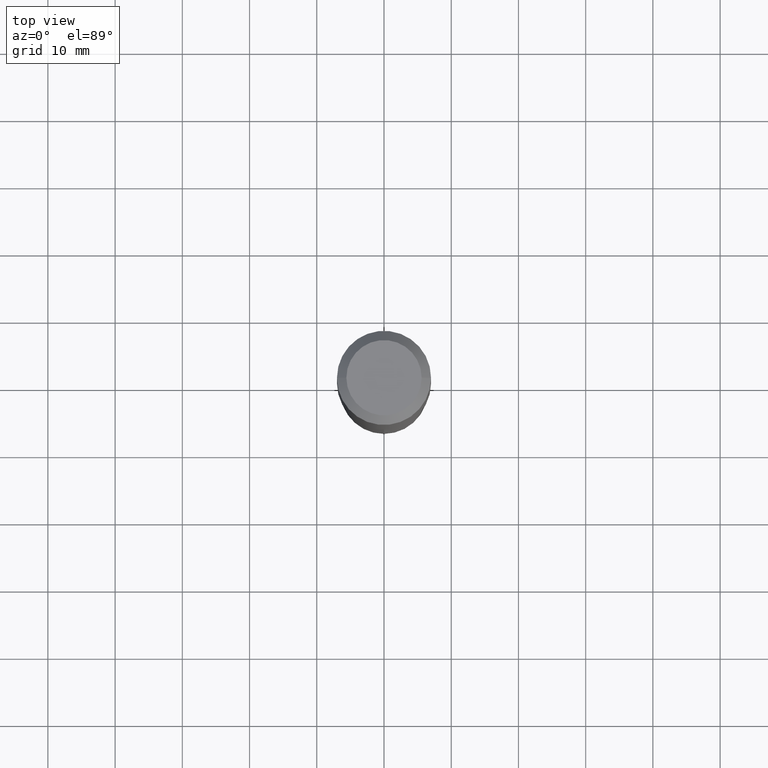
[diagram: clean part render]
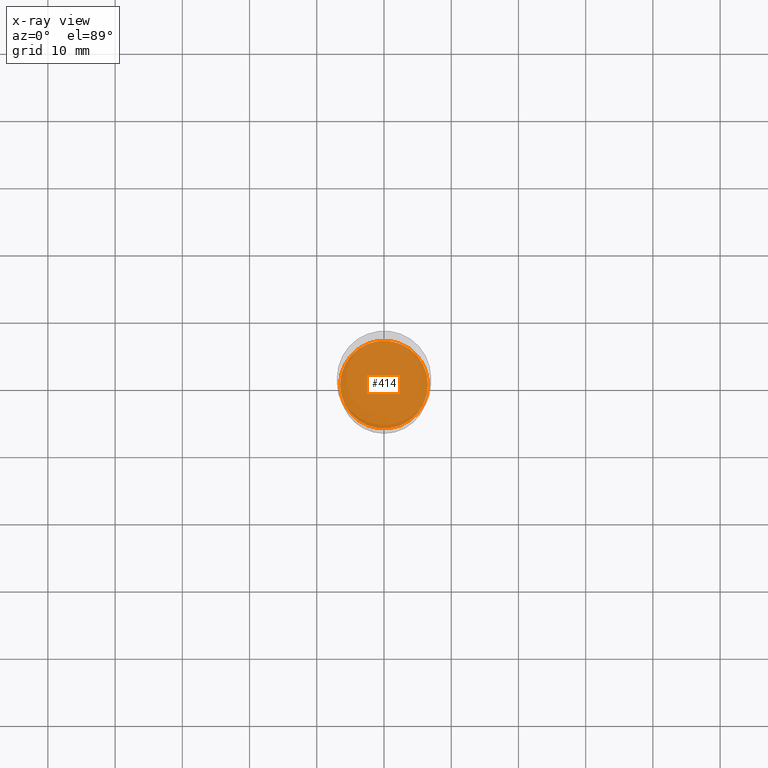
[diagram: x-ray — body ghosted, one internal face saturated and labeled with its STEP entity id]
A machine part, top view, then the same camera in x-ray: the body is ghosted and one INTERNAL B-rep face — a face not visible from any outside direction — is saturated and labeled: STEP entity #414.
In plain terms, the highlighted planar face has unit normal (-0, 0, 1).
Its self-contained STEP definition (entity closure, byte-faithful):
#26 = EDGE_CURVE ( 'NONE', #292, #154, #142, .T. ) ;
#36 = DIRECTION ( 'NONE',  ( -2.445468806185136597E-29, 3.491481338843145583E-15, 1.000000000000000000 ) ) ;
#38 = ORIENTED_EDGE ( 'NONE', *, *, #418, .F. ) ;
#86 = FACE_OUTER_BOUND ( 'NONE', #294, .T. ) ;
#95 = DIRECTION ( 'NONE',  ( 1.000000000000000000, -6.982962677686266711E-15, 0.000000000000000000 ) ) ;
#97 = PLANE ( 'NONE',  #98 ) ;
#98 = AXIS2_PLACEMENT_3D ( 'NONE', #351, #282, #132 ) ;
#132 = DIRECTION ( 'NONE',  ( 1.000000000000000000, -6.982962677686265922E-15, 4.876176775795935793E-29 ) ) ;
#142 = CIRCLE ( 'NONE', #477, 0.2572999999999999732 ) ;
#152 = CARTESIAN_POINT ( 'NONE',  ( 5.785979195434034596E-29, -8.260844847702884631E-15, -2.366000000000000547 ) ) ;
#154 = VERTEX_POINT ( 'NONE', #370 ) ;
#162 = DIRECTION ( 'NONE',  ( -2.445468806185136597E-29, 3.491481338843145583E-15, 1.000000000000000000 ) ) ;
#282 = DIRECTION ( 'NONE',  ( -2.438088387897960049E-29, 3.491481338843145188E-15, 1.000000000000000000 ) ) ;
#285 = CARTESIAN_POINT ( 'NONE',  ( 5.785979195434034596E-29, -8.260844847702884631E-15, -2.366000000000000547 ) ) ;
#292 = VERTEX_POINT ( 'NONE', #320 ) ;
#294 = EDGE_LOOP ( 'NONE', ( #343, #38 ) ) ;
#295 = CIRCLE ( 'NONE', #354, 0.2572999999999999732 ) ;
#320 = CARTESIAN_POINT ( 'NONE',  ( 0.2572999999999999732, -1.005756114467156079E-14, -2.366000000000000547 ) ) ;
#343 = ORIENTED_EDGE ( 'NONE', *, *, #26, .F. ) ;
#351 = CARTESIAN_POINT ( 'NONE',  ( 4.031811109684418189E-29, -1.077291338754340070E-14, -2.366000000000000547 ) ) ;
#354 = AXIS2_PLACEMENT_3D ( 'NONE', #285, #162, #95 ) ;
#370 = CARTESIAN_POINT ( 'NONE',  ( -0.2572999999999999732, -6.429969161418035843E-15, -2.366000000000000547 ) ) ;
#376 = DIRECTION ( 'NONE',  ( 1.000000000000000000, -6.982962677686266711E-15, 0.000000000000000000 ) ) ;
#414 = ADVANCED_FACE ( 'NONE', ( #86 ), #97, .F. ) ;
#418 = EDGE_CURVE ( 'NONE', #154, #292, #295, .T. ) ;
#477 = AXIS2_PLACEMENT_3D ( 'NONE', #152, #36, #376 ) ;